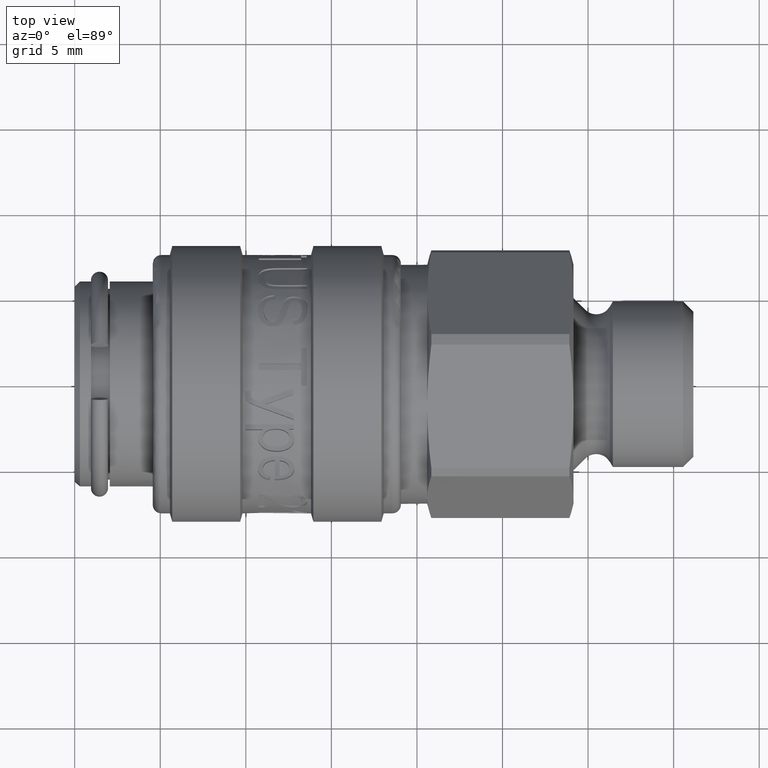
[diagram: clean part render]
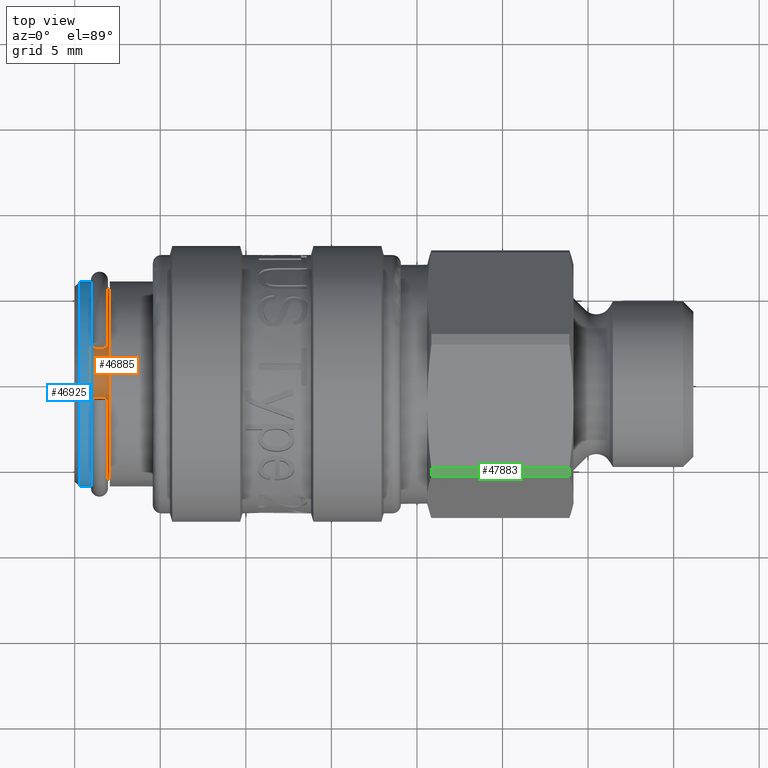
[diagram: same view with three faces highlighted in distinct colors, each labeled with its STEP entity id]
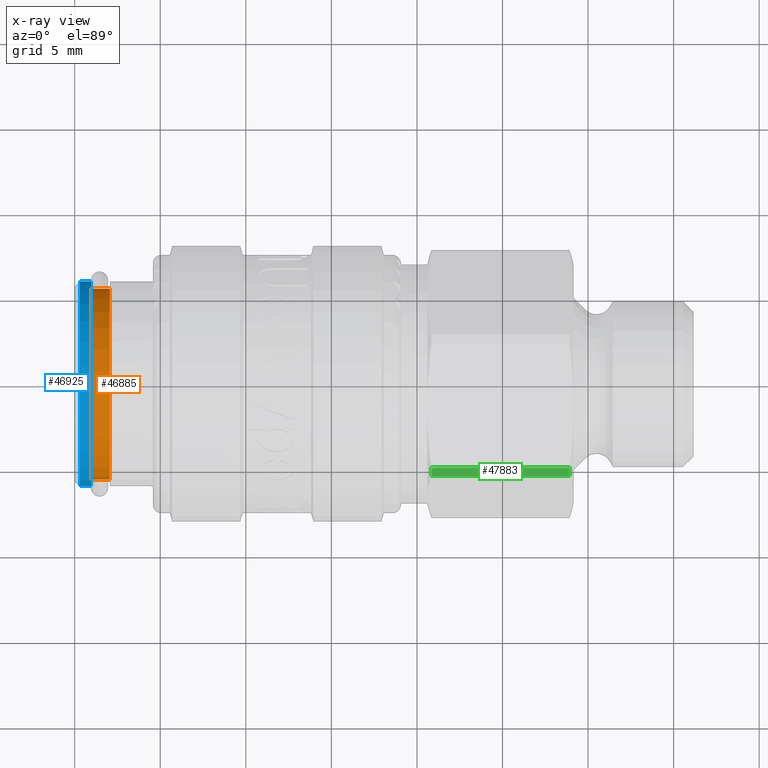
[diagram: x-ray of the same camera — body ghosted, the three highlighted faces saturated]
A machine part, top view with three faces highlighted in distinct colors.
The next image is the same camera in x-ray (body ghosted, the three faces saturated) — at least one of them is partly hidden behind the body in this view.
Their STEP definitions:

[orange] entity #46885 — the highlighted cylindrical surface (bore or boss wall) has radius 5.575 mm, axis along (1, 0, 0).
#46834=CARTESIAN_POINT('',(2.050000000000001,5.575,0.0));
#46835=VERTEX_POINT('',#46834);
#46836=CARTESIAN_POINT('',(2.050000000000001,0.0,0.0));
#46837=DIRECTION('',(1.0,0.0,0.0));
#46838=DIRECTION('',(0.0,1.0,0.0));
#46839=AXIS2_PLACEMENT_3D('',#46836,#46837,#46838);
#46840=CIRCLE('',#46839,5.575);
#46841=EDGE_CURVE('',#46835,#46835,#46840,.T.);
#46846=CARTESIAN_POINT('',(1.499999999999999,0.0,0.0));
#46847=DIRECTION('',(1.0,0.0,0.0));
#46848=DIRECTION('',(0.0,1.0,0.0));
#46849=AXIS2_PLACEMENT_3D('',#46846,#46847,#46848);
#46850=CYLINDRICAL_SURFACE('',#46849,5.574999999999999);
#46851=ORIENTED_EDGE('',*,*,#46841,.F.);
#46852=EDGE_LOOP('',(#46851));
#46853=FACE_OUTER_BOUND('',#46852,.T.);
#46854=CARTESIAN_POINT('',(1.450000000000594,-0.877086963066858,5.505573853761129));
#46855=VERTEX_POINT('',#46854);
#46856=CARTESIAN_POINT('',(1.450000000000594,1.99320733553652,5.206510301301961));
#46857=VERTEX_POINT('',#46856);
#46858=CARTESIAN_POINT('',(1.450000000000609,3.170052E-017,1.265145E-015));
#46859=DIRECTION('',(1.0,0.0,0.0));
#46860=DIRECTION('',(0.0,1.0,0.0));
#46861=AXIS2_PLACEMENT_3D('',#46858,#46859,#46860);
#46862=CIRCLE('',#46861,5.574999999999999);
#46863=EDGE_CURVE('',#46855,#46857,#46862,.T.);
#46864=ORIENTED_EDGE('',*,*,#46863,.T.);
#46865=CARTESIAN_POINT('',(1.450000000000609,3.170052E-017,1.265145E-015));
#46866=DIRECTION('',(1.0,0.0,0.0));
#46867=DIRECTION('',(0.0,1.0,0.0));
#46868=AXIS2_PLACEMENT_3D('',#46865,#46866,#46867);
#46869=CIRCLE('',#46868,5.574999999999999);
#46870=EDGE_CURVE('',#46855,#46857,#46869,.T.);
#46871=ORIENTED_EDGE('',*,*,#46870,.F.);
#46872=EDGE_LOOP('',(#46864,#46871));
#46873=FACE_BOUND('',#46872,.T.);
#46874=CARTESIAN_POINT('',(0.95,5.574999999999999,0.0));
#46875=VERTEX_POINT('',#46874);
#46876=CARTESIAN_POINT('',(0.949999999999998,0.0,0.0));
#46877=DIRECTION('',(1.0,0.0,0.0));
#46878=DIRECTION('',(0.0,1.0,0.0));
#46879=AXIS2_PLACEMENT_3D('',#46876,#46877,#46878);
#46880=CIRCLE('',#46879,5.574999999999999);
#46881=EDGE_CURVE('',#46875,#46875,#46880,.T.);
#46882=ORIENTED_EDGE('',*,*,#46881,.T.);
#46883=EDGE_LOOP('',(#46882));
#46884=FACE_BOUND('',#46883,.T.);
#46885=ADVANCED_FACE('',(#46853,#46873,#46884),#46850,.T.);

[blue] entity #46925 — the highlighted cylindrical surface (bore or boss wall) has radius 6 mm, axis along (1, 0, 0).
#46891=CARTESIAN_POINT('',(0.950000000000001,6.000000000000001,0.0));
#46892=VERTEX_POINT('',#46891);
#46893=CARTESIAN_POINT('',(0.950000000000002,0.0,0.0));
#46894=DIRECTION('',(1.0,0.0,0.0));
#46895=DIRECTION('',(0.0,1.0,0.0));
#46896=AXIS2_PLACEMENT_3D('',#46893,#46894,#46895);
#46897=CIRCLE('',#46896,6.000000000000001);
#46898=EDGE_CURVE('',#46892,#46892,#46897,.T.);
#46906=CARTESIAN_POINT('',(0.625,0.0,0.0));
#46907=DIRECTION('',(1.0,0.0,0.0));
#46908=DIRECTION('',(0.0,1.0,0.0));
#46909=AXIS2_PLACEMENT_3D('',#46906,#46907,#46908);
#46910=CYLINDRICAL_SURFACE('',#46909,6.000000000000001);
#46911=ORIENTED_EDGE('',*,*,#46898,.F.);
#46912=EDGE_LOOP('',(#46911));
#46913=FACE_OUTER_BOUND('',#46912,.T.);
#46914=CARTESIAN_POINT('',(0.300000000000002,6.000000000000001,0.0));
#46915=VERTEX_POINT('',#46914);
#46916=CARTESIAN_POINT('',(0.300000000000002,0.0,0.0));
#46917=DIRECTION('',(1.0,0.0,0.0));
#46918=DIRECTION('',(0.0,1.0,0.0));
#46919=AXIS2_PLACEMENT_3D('',#46916,#46917,#46918);
#46920=CIRCLE('',#46919,6.000000000000001);
#46921=EDGE_CURVE('',#46915,#46915,#46920,.T.);
#46922=ORIENTED_EDGE('',*,*,#46921,.T.);
#46923=EDGE_LOOP('',(#46922));
#46924=FACE_BOUND('',#46923,.T.);
#46925=ADVANCED_FACE('',(#46913,#46924),#46910,.T.);

[green] entity #47883 — the highlighted cylindrical surface (partial cylindrical patch) has radius 7.9 mm, axis along (-1, 0, 0).
#47655=CARTESIAN_POINT('',(28.908845726811986,-4.992866759502191,6.122195808846538));
#47656=VERTEX_POINT('',#47655);
#47670=CARTESIAN_POINT('',(28.908845726811986,-5.484517112367318,5.685953925609147));
#47671=VERTEX_POINT('',#47670);
#47672=CARTESIAN_POINT('',(28.908845726811986,0.0,0.0));
#47673=DIRECTION('',(-1.0,0.0,0.0));
#47674=DIRECTION('',(0.0,0.948780542108724,-0.315935884185188));
#47675=AXIS2_PLACEMENT_3D('',#47672,#47673,#47674);
#47676=CIRCLE('',#47675,7.9);
#47677=EDGE_CURVE('',#47671,#47656,#47676,.T.);
#47852=CARTESIAN_POINT('',(24.875,0.0,0.0));
#47853=DIRECTION('',(-1.0,0.0,0.0));
#47854=DIRECTION('',(0.0,0.948780542108724,-0.315935884185188));
#47855=AXIS2_PLACEMENT_3D('',#47852,#47853,#47854);
#47856=CYLINDRICAL_SURFACE('',#47855,7.9);
#47857=CARTESIAN_POINT('',(20.841154273188014,-4.992866759502191,6.122195808846538));
#47858=VERTEX_POINT('',#47857);
#47859=CARTESIAN_POINT('',(28.90884572681199,-4.992866759502191,6.122195808846538));
#47860=DIRECTION('',(-1.0,0.0,0.0));
#47861=VECTOR('',#47860,8.067691453623972);
#47862=LINE('',#47859,#47861);
#47863=EDGE_CURVE('',#47656,#47858,#47862,.T.);
#47864=ORIENTED_EDGE('',*,*,#47863,.T.);
#47865=CARTESIAN_POINT('',(20.841154273188014,-5.484517112367318,5.685953925609147));
#47866=VERTEX_POINT('',#47865);
#47867=CARTESIAN_POINT('',(20.841154273188014,0.0,0.0));
#47868=DIRECTION('',(-1.0,0.0,0.0));
#47869=DIRECTION('',(0.0,0.948780542108724,-0.315935884185188));
#47870=AXIS2_PLACEMENT_3D('',#47867,#47868,#47869);
#47871=CIRCLE('',#47870,7.9);
#47872=EDGE_CURVE('',#47866,#47858,#47871,.T.);
#47873=ORIENTED_EDGE('',*,*,#47872,.F.);
#47874=CARTESIAN_POINT('',(20.841154273188017,-5.484517112367318,5.685953925609147));
#47875=DIRECTION('',(1.0,0.0,0.0));
#47876=VECTOR('',#47875,8.067691453623972);
#47877=LINE('',#47874,#47876);
#47878=EDGE_CURVE('',#47866,#47671,#47877,.T.);
#47879=ORIENTED_EDGE('',*,*,#47878,.T.);
#47880=ORIENTED_EDGE('',*,*,#47677,.T.);
#47881=EDGE_LOOP('',(#47864,#47873,#47879,#47880));
#47882=FACE_OUTER_BOUND('',#47881,.T.);
#47883=ADVANCED_FACE('',(#47882),#47856,.T.);